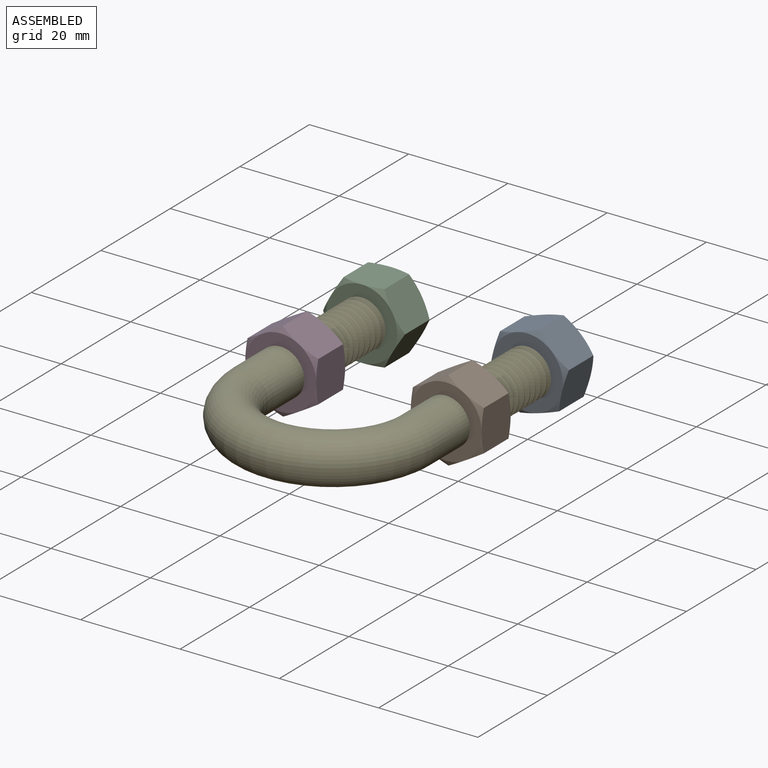
[diagram: assembled view]
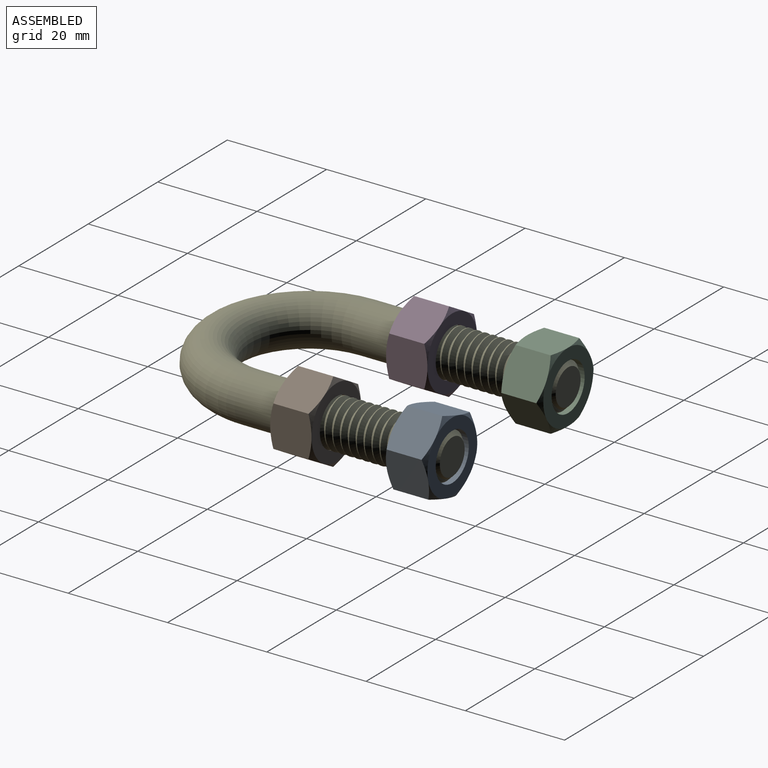
[diagram: assembled view, second angle]
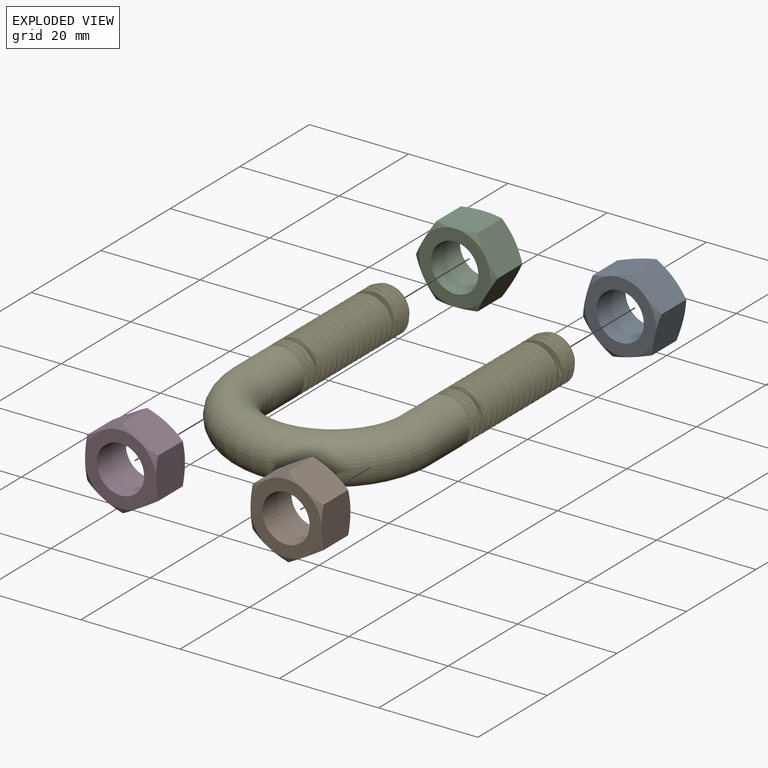
[diagram: exploded view]
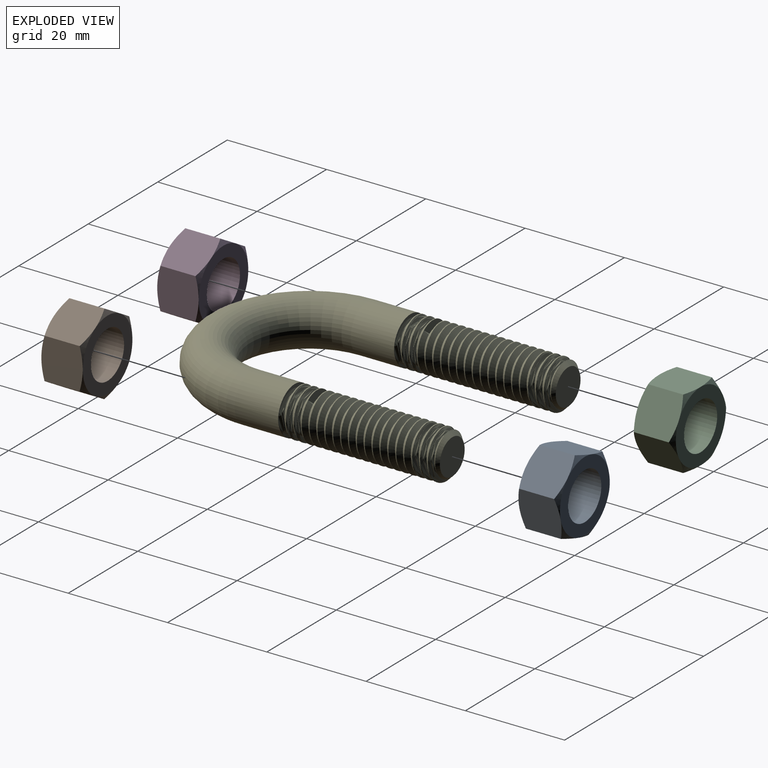
[diagram: exploded view, second angle]
ASSEMBLY  parts=5 mates=4
PART A: 21 faces, bbox 17.2x9x17.2 mm
  f0: plane 9.02x8.94mm, normal (0,0,1), area 65.1mm2, adj f1,f5,f9,f14,f15,f20
  f1: plane 9.02x7.82mm, normal (0.87,0,0.5), area 65.1mm2, adj f0,f2,f13,f14,f19,f20
  f2: plane 9.02x7.82mm, normal (0.87,0,-0.5), area 65.1mm2, adj f1,f3,f12,f13,f18,f19
  f3: plane 9.02x8.94mm, normal (0,0,-1), area 65.1mm2, adj f2,f4,f11,f12,f17,f18
  f4: plane 9.02x7.82mm, normal (-0.87,0,-0.5), area 65.1mm2, adj f3,f5,f10,f11,f16,f17
  f5: plane 9.02x7.82mm, normal (-0.87,0,0.5), area 65.1mm2, adj f0,f4,f9,f10,f15,f16
  f6: plane 14.29x14.29mm, normal (0,-1,0), area 89.1mm2, adj f8,f15,f16,f17,f18,f19,f20
  f7: plane 14.29x14.29mm, normal (0,1,0), area 89.1mm2, adj f8,f9,f10,f11,f12,f13,f14
  f8: cylinder r=4.76mm len=9.53mm, axis (0,-1,0), area 249.4mm2, adj f6,f7
  f9: cone r=7.14mm half-angle=60deg, axis (0,-1,0), area 5mm2, adj f0,f5,f7
  f10: cone r=7.14mm half-angle=60deg, axis (0,-1,0), area 5mm2, adj f4,f5,f7
  f11: cone r=7.14mm half-angle=60deg, axis (0,-1,0), area 5mm2, adj f3,f4,f7
  f12: cone r=7.14mm half-angle=60deg, axis (0,-1,0), area 5mm2, adj f2,f3,f7
  f13: cone r=7.14mm half-angle=60deg, axis (0,-1,0), area 5mm2, adj f1,f2,f7
  f14: cone r=7.14mm half-angle=60deg, axis (0,-1,0), area 5mm2, adj f0,f1,f7
  f15: cone r=7.14mm half-angle=60deg, axis (0,1,0), area 5mm2, adj f0,f5,f6
  f16: cone r=7.14mm half-angle=60deg, axis (0,1,0), area 5mm2, adj f4,f5,f6
  f17: cone r=7.14mm half-angle=60deg, axis (0,1,0), area 5mm2, adj f3,f4,f6
  f18: cone r=7.14mm half-angle=60deg, axis (0,1,0), area 5mm2, adj f2,f3,f6
  f19: cone r=7.14mm half-angle=60deg, axis (0,1,0), area 5mm2, adj f1,f2,f6
  f20: cone r=7.14mm half-angle=60deg, axis (0,1,0), area 5mm2, adj f0,f1,f6
PART B: 21 faces, bbox 17.2x9x17.2 mm
  f0: plane 9.02x8.94mm, normal (0,0,1), area 65.1mm2, adj f1,f5,f9,f14,f15,f20
  f1: plane 9.02x7.82mm, normal (0.87,0,0.5), area 65.1mm2, adj f0,f2,f13,f14,f19,f20
  f2: plane 9.02x7.82mm, normal (0.87,0,-0.5), area 65.1mm2, adj f1,f3,f12,f13,f18,f19
  f3: plane 9.02x8.94mm, normal (0,0,-1), area 65.1mm2, adj f2,f4,f11,f12,f17,f18
  f4: plane 9.02x7.82mm, normal (-0.87,0,-0.5), area 65.1mm2, adj f3,f5,f10,f11,f16,f17
  f5: plane 9.02x7.82mm, normal (-0.87,0,0.5), area 65.1mm2, adj f0,f4,f9,f10,f15,f16
  f6: plane 14.29x14.29mm, normal (0,-1,0), area 89.1mm2, adj f8,f15,f16,f17,f18,f19,f20
  f7: plane 14.29x14.29mm, normal (0,1,0), area 89.1mm2, adj f8,f9,f10,f11,f12,f13,f14
  f8: cylinder r=4.76mm len=9.53mm, axis (0,-1,0), area 249.4mm2, adj f6,f7
  f9: cone r=7.14mm half-angle=60deg, axis (0,-1,0), area 5mm2, adj f0,f5,f7
  f10: cone r=7.14mm half-angle=60deg, axis (0,-1,0), area 5mm2, adj f4,f5,f7
  f11: cone r=7.14mm half-angle=60deg, axis (0,-1,0), area 5mm2, adj f3,f4,f7
  f12: cone r=7.14mm half-angle=60deg, axis (0,-1,0), area 5mm2, adj f2,f3,f7
  f13: cone r=7.14mm half-angle=60deg, axis (0,-1,0), area 5mm2, adj f1,f2,f7
  f14: cone r=7.14mm half-angle=60deg, axis (0,-1,0), area 5mm2, adj f0,f1,f7
  f15: cone r=7.14mm half-angle=60deg, axis (0,1,0), area 5mm2, adj f0,f5,f6
  f16: cone r=7.14mm half-angle=60deg, axis (0,1,0), area 5mm2, adj f4,f5,f6
  f17: cone r=7.14mm half-angle=60deg, axis (0,1,0), area 5mm2, adj f3,f4,f6
  f18: cone r=7.14mm half-angle=60deg, axis (0,1,0), area 5mm2, adj f2,f3,f6
  f19: cone r=7.14mm half-angle=60deg, axis (0,1,0), area 5mm2, adj f1,f2,f6
  f20: cone r=7.14mm half-angle=60deg, axis (0,1,0), area 5mm2, adj f0,f1,f6
PART C: same geometry as A
PART D: same geometry as A
PART E: 53 faces, bbox 47x64.9x10.1 mm
  f0: cylinder r=4.76mm len=9.53mm, axis (0,1,0), area 3.3mm2, adj f1,f21,f22,f23
  f1: cylinder r=4.76mm len=9.53mm, axis (0,1,0), area 5.9mm2, adj f0,f2,f22,f23
  f2: cylinder r=4.76mm len=9.53mm, axis (0,1,0), area 5.9mm2, adj f1,f3,f22,f23
  f3: cylinder r=4.76mm len=9.53mm, axis (0,1,0), area 5.9mm2, adj f2,f4,f22,f23
  f4: cylinder r=4.76mm len=9.53mm, axis (0,1,0), area 5.9mm2, adj f3,f5,f22,f23
  f5: cylinder r=4.76mm len=9.53mm, axis (0,1,0), area 5.9mm2, adj f4,f6,f22,f23
  f6: cylinder r=4.76mm len=9.53mm, axis (0,1,0), area 5.9mm2, adj f5,f7,f22,f23
  f7: cylinder r=4.76mm len=9.53mm, axis (0,1,0), area 5.9mm2, adj f6,f8,f22,f23
  f8: cylinder r=4.76mm len=9.53mm, axis (0,1,0), area 5.9mm2, adj f7,f9,f22,f23
  f9: cylinder r=4.76mm len=9.53mm, axis (0,1,0), area 5.9mm2, adj f8,f10,f22,f23
  f10: cylinder r=4.76mm len=9.53mm, axis (0,1,0), area 5.9mm2, adj f9,f11,f22,f23
  f11: cylinder r=4.76mm len=9.53mm, axis (0,1,0), area 5.9mm2, adj f10,f12,f22,f23
  f12: cylinder r=4.76mm len=9.53mm, axis (0,1,0), area 5.9mm2, adj f11,f13,f22,f23
  f13: cylinder r=4.76mm len=9.53mm, axis (0,1,0), area 5.9mm2, adj f12,f14,f22,f23
  f14: cylinder r=4.76mm len=9.53mm, axis (0,1,0), area 5.9mm2, adj f13,f15,f22,f23
  f15: cylinder r=4.76mm len=9.53mm, axis (0,1,0), area 5.9mm2, adj f14,f16,f22,f23
  f16: cylinder r=4.76mm len=9.53mm, axis (0,1,0), area 5.9mm2, adj f15,f17,f22,f23
  f17: cylinder r=4.76mm len=9.53mm, axis (0,1,0), area 5.9mm2, adj f16,f18,f22,f23
  f18: cylinder r=4.76mm len=9.53mm, axis (0,1,0), area 5.9mm2, adj f17,f19,f22,f23
  f19: cylinder r=4.76mm len=9.92mm, axis (0,1,0), area 265.4mm2, adj f18,f22,f23,f25,f47
  f20: plane 7.14x7.14mm, normal (0,1,0), area 40.1mm2, adj f21
  f21: cone r=3.57mm half-angle=45deg, axis (0,-1,0), area 24mm2, adj f0,f20,f22,f23,f24
  f22: bspline ~32.94x9.53mm, area 623.9mm2, adj f0,f1,f2,f3,f4,f5,f6,f7
  f23: bspline ~32.35x9.53mm, area 622.2mm2, adj f0,f1,f2,f3,f4,f5,f6,f7
  f24: bspline ~32.15x7.46mm, area 93mm2, adj f21,f22,f23,f25
  f25: plane 10.14x10.14mm, normal (0,1,0), area 14.2mm2, adj f19,f22,f23,f24
  f26: plane 10.14x10.14mm, normal (0,1,0), area 14.2mm2, adj f27,f50,f51,f52
  f27: cylinder r=4.76mm len=9.92mm, axis (0,1,0), area 265.4mm2, adj f26,f28,f47,f50,f51
  f28: cylinder r=4.76mm len=9.53mm, axis (0,1,0), area 5.9mm2, adj f27,f29,f50,f51
  f29: cylinder r=4.76mm len=9.53mm, axis (0,1,0), area 5.9mm2, adj f28,f30,f50,f51
  f30: cylinder r=4.76mm len=9.53mm, axis (0,1,0), area 5.9mm2, adj f29,f31,f50,f51
  f31: cylinder r=4.76mm len=9.53mm, axis (0,1,0), area 5.9mm2, adj f30,f32,f50,f51
  f32: cylinder r=4.76mm len=9.53mm, axis (0,1,0), area 5.9mm2, adj f31,f33,f50,f51
  f33: cylinder r=4.76mm len=9.53mm, axis (0,1,0), area 5.9mm2, adj f32,f34,f50,f51
  f34: cylinder r=4.76mm len=9.53mm, axis (0,1,0), area 5.9mm2, adj f33,f35,f50,f51
  f35: cylinder r=4.76mm len=9.53mm, axis (0,1,0), area 5.9mm2, adj f34,f36,f50,f51
  f36: cylinder r=4.76mm len=9.53mm, axis (0,1,0), area 5.9mm2, adj f35,f37,f50,f51
  f37: cylinder r=4.76mm len=9.53mm, axis (0,1,0), area 5.9mm2, adj f36,f38,f50,f51
  f38: cylinder r=4.76mm len=9.53mm, axis (0,1,0), area 5.9mm2, adj f37,f39,f50,f51
  f39: cylinder r=4.76mm len=9.53mm, axis (0,1,0), area 5.9mm2, adj f38,f40,f50,f51
  f40: cylinder r=4.76mm len=9.53mm, axis (0,1,0), area 5.9mm2, adj f39,f41,f50,f51
  f41: cylinder r=4.76mm len=9.53mm, axis (0,1,0), area 5.9mm2, adj f40,f42,f50,f51
  f42: cylinder r=4.76mm len=9.53mm, axis (0,1,0), area 5.9mm2, adj f41,f43,f50,f51
  f43: cylinder r=4.76mm len=9.53mm, axis (0,1,0), area 5.9mm2, adj f42,f44,f50,f51
  f44: cylinder r=4.76mm len=9.53mm, axis (0,1,0), area 5.9mm2, adj f43,f45,f50,f51
  f45: cylinder r=4.76mm len=9.53mm, axis (0,1,0), area 5.9mm2, adj f44,f46,f50,f51
  f46: cylinder r=4.76mm len=9.53mm, axis (0,1,0), area 3.3mm2, adj f45,f49,f50,f51
  f47: torus R=16.67mm, axis (0,0,1), area 1567mm2, adj f19,f27
  f48: plane 7.14x7.14mm, normal (0,1,0), area 40.1mm2, adj f49
  f49: cone r=3.57mm half-angle=45deg, axis (0,-1,0), area 24mm2, adj f46,f48,f50,f51,f52
  f50: bspline ~32.94x9.53mm, area 623.9mm2, adj f26,f27,f28,f29,f30,f31,f32,f33
  f51: bspline ~32.35x9.53mm, area 622.2mm2, adj f26,f27,f28,f29,f30,f31,f32,f33
  f52: bspline ~32.15x7.46mm, area 93mm2, adj f26,f49,f50,f51
PLACE A rot(axis=(0,1,0),103.8deg) t=(12.69,-1.05,-13.89)mm
PLACE B rot(axis=(0,1,0),29.9deg) t=(2.21,-24.39,10.6)mm
PLACE C t=(-0.01,-1.05,2.3)mm
PLACE D rot(axis=(0,1,0),29.9deg) t=(-2.22,-24.39,-6.01)mm
PLACE E t=(-0.01,-7.47,2.3)mm fixed
MATE cylindrical B.f8 <-> E.f27  axis (0,-1,0) through (16.66,5.51,2.3)mm
MATE revolute A.f8 <-> E.f27  axis (0,-1,0) through (16.66,33.02,2.3)mm
MATE cylindrical D.f8 <-> E.f0  axis (0,-1,0) through (-16.68,5.51,2.3)mm
MATE revolute E.f0 <-> C.f8  axis (0,1,0) through (-16.68,33.02,2.3)mm
